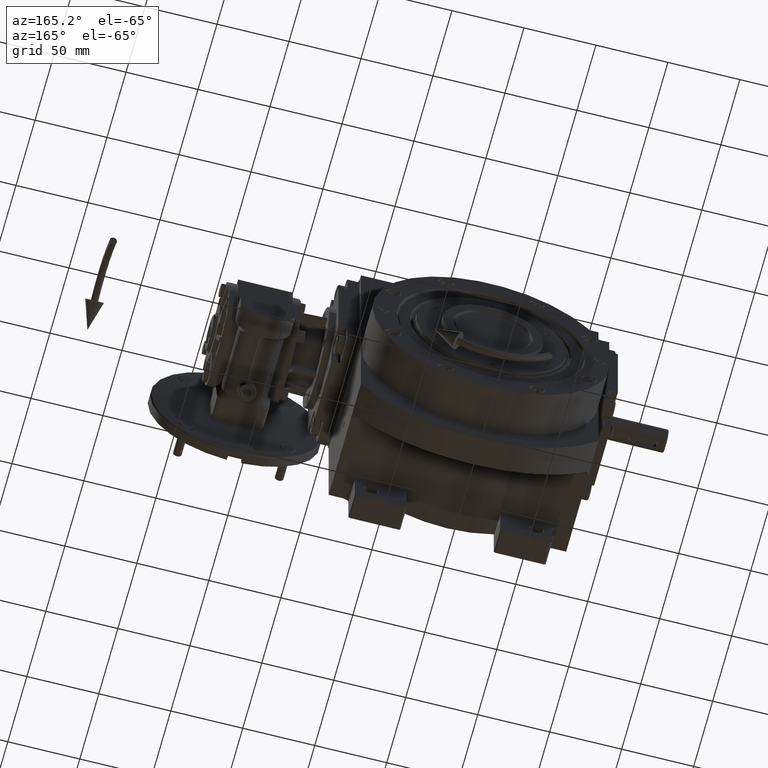
[diagram: clean part render]
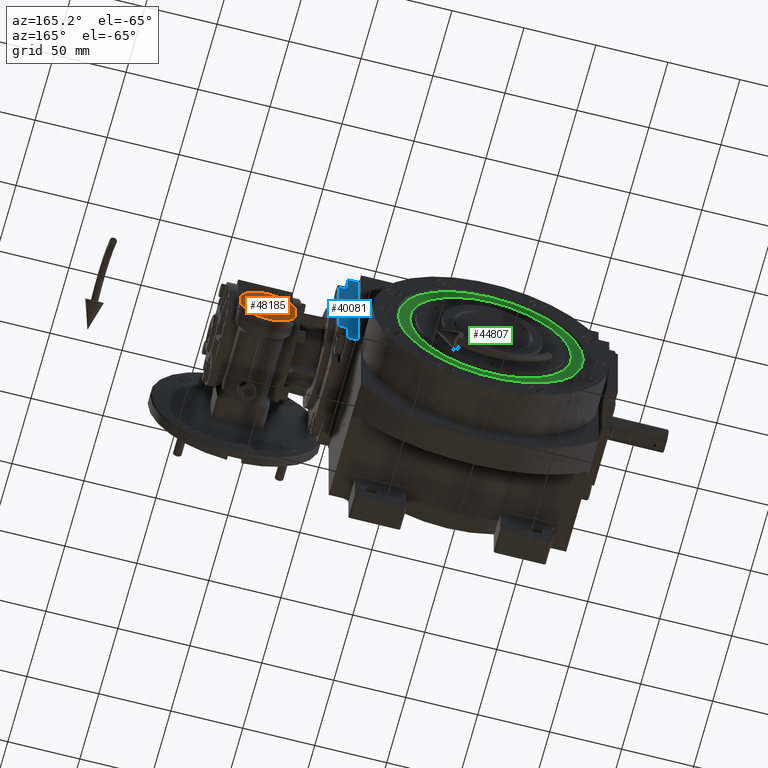
[diagram: same view with three faces highlighted in distinct colors, each labeled with its STEP entity id]
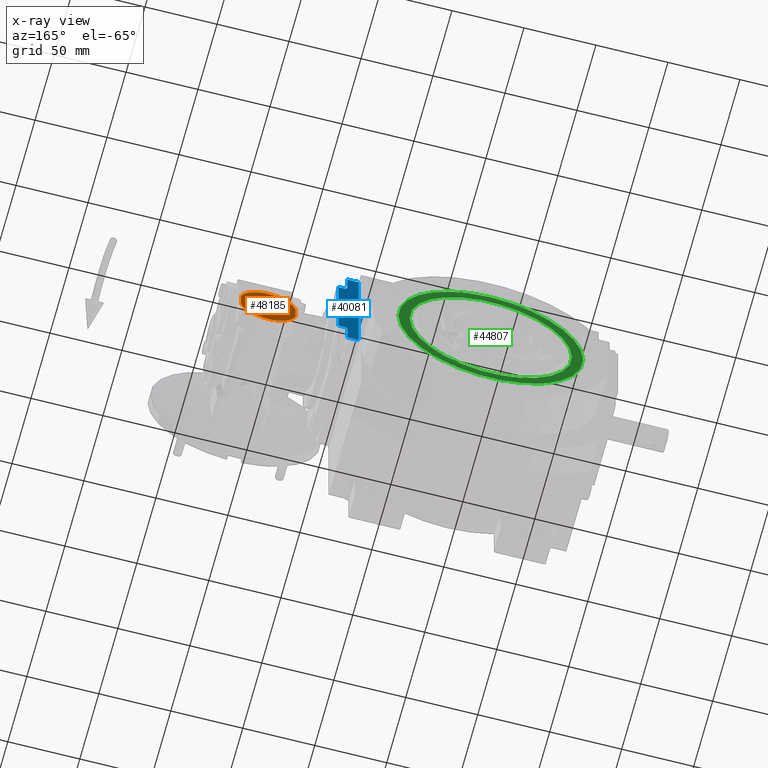
[diagram: x-ray of the same camera — body ghosted, the three highlighted faces saturated]
A machine part, auxiliary view with three faces highlighted in distinct colors.
The next image is the same camera in x-ray (body ghosted, the three faces saturated) — at least one of them is partly hidden behind the body in this view.
Their STEP definitions:

[orange] entity #48185 — the highlighted planar face has unit normal (-0, 1, 0).
#2625 = VECTOR ( 'NONE', #80742, 1000.000000000000000 ) ;
#2636 = AXIS2_PLACEMENT_3D ( 'NONE', #33237, #63866, #10971 ) ;
#3075 = PLANE ( 'NONE',  #2636 ) ;
#3303 = ORIENTED_EDGE ( 'NONE', *, *, #97345, .T. ) ;
#8624 = CARTESIAN_POINT ( 'NONE',  ( 18.99999999999998934, 34.24499799840094738, -41.00000000000000000 ) ) ;
#8653 = ORIENTED_EDGE ( 'NONE', *, *, #28893, .F. ) ;
#10971 = DIRECTION ( 'NONE',  ( -1.141460142690470232E-31, -1.000000000000000000, 1.887379141862704588E-15 ) ) ;
#11056 = CIRCLE ( 'NONE', #36356, 19.99999999999993605 ) ;
#13781 = VECTOR ( 'NONE', #28564, 1000.000000000000000 ) ;
#16617 = VERTEX_POINT ( 'NONE', #37657 ) ;
#20969 = EDGE_CURVE ( 'NONE', #29859, #86043, #40345, .T. ) ;
#25027 = VERTEX_POINT ( 'NONE', #60143 ) ;
#28564 = DIRECTION ( 'NONE',  ( 1.141460142690470451E-31, 1.000000000000000000, -1.887379141862704982E-15 ) ) ;
#28893 = EDGE_CURVE ( 'NONE', #16617, #86043, #88857, .T. ) ;
#29859 = VERTEX_POINT ( 'NONE', #60454 ) ;
#32755 = FACE_OUTER_BOUND ( 'NONE', #36085, .T. ) ;
#33237 = CARTESIAN_POINT ( 'NONE',  ( 0.000000000000000000, 28.00000000000094147, -41.00000000000023448 ) ) ;
#36085 = EDGE_LOOP ( 'NONE', ( #8653, #3303, #57301, #91456 ) ) ;
#36356 = AXIS2_PLACEMENT_3D ( 'NONE', #36648, #66800, #96947 ) ;
#36648 = CARTESIAN_POINT ( 'NONE',  ( 0.000000000000000000, 28.00000000000094147, -41.00000000000023448 ) ) ;
#37657 = CARTESIAN_POINT ( 'NONE',  ( 18.99999999999998934, 21.75500200160047370, -41.00000000000023448 ) ) ;
#38087 = DIRECTION ( 'NONE',  ( -0.9500000000000030642, 0.3122498999199105896, -6.938893903907251057E-16 ) ) ;
#39567 = CARTESIAN_POINT ( 'NONE',  ( 0.000000000000000000, 28.00000000000094147, -41.00000000000023448 ) ) ;
#40345 = CIRCLE ( 'NONE', #87680, 19.99999999999993605 ) ;
#48185 = ADVANCED_FACE ( 'NONE', ( #32755 ), #3075, .T. ) ;
#50629 = LINE ( 'NONE', #96091, #2625 ) ;
#57301 = ORIENTED_EDGE ( 'NONE', *, *, #92005, .F. ) ;
#60143 = CARTESIAN_POINT ( 'NONE',  ( -18.99999999999998934, 21.75500200160047370, -41.00000000000023448 ) ) ;
#60454 = CARTESIAN_POINT ( 'NONE',  ( -18.99999999999998934, 34.24499799840094738, -41.00000000000000000 ) ) ;
#63866 = DIRECTION ( 'NONE',  ( -4.335249955087420545E-46, -1.887379141862704588E-15, -1.000000000000000000 ) ) ;
#66800 = DIRECTION ( 'NONE',  ( -2.651382592411505179E-48, 1.887379141862762174E-15, -1.000000000000000000 ) ) ;
#80742 = DIRECTION ( 'NONE',  ( -1.141460142690470451E-31, -1.000000000000000000, 1.887379141862704982E-15 ) ) ;
#83035 = DIRECTION ( 'NONE',  ( -2.651382592411505179E-48, 1.887379141862762174E-15, -1.000000000000000000 ) ) ;
#86043 = VERTEX_POINT ( 'NONE', #8624 ) ;
#87680 = AXIS2_PLACEMENT_3D ( 'NONE', #39567, #83035, #38087 ) ;
#88857 = LINE ( 'NONE', #89350, #13781 ) ;
#89350 = CARTESIAN_POINT ( 'NONE',  ( 18.99999999999998934, 21.75500200160047370, -41.00000000000023448 ) ) ;
#91456 = ORIENTED_EDGE ( 'NONE', *, *, #20969, .T. ) ;
#92005 = EDGE_CURVE ( 'NONE', #29859, #25027, #50629, .T. ) ;
#96091 = CARTESIAN_POINT ( 'NONE',  ( -18.99999999999998934, 34.24499799840094738, -41.00000000000000000 ) ) ;
#96947 = DIRECTION ( 'NONE',  ( 0.9500000000000030642, -0.3122498999199105896, 6.938893903907251057E-16 ) ) ;
#97345 = EDGE_CURVE ( 'NONE', #16617, #25027, #11056, .T. ) ;

[blue] entity #40081 — the highlighted planar face has unit normal (-0, 1, -0).
#1320 = CARTESIAN_POINT ( 'NONE',  ( -40.50000000000023448, -7.999999999999049649, -46.00000000000046896 ) ) ;
#1484 = CARTESIAN_POINT ( 'NONE',  ( -40.49999999999929656, -7.999999999999063860, 32.49999999999953104 ) ) ;
#2941 = EDGE_CURVE ( 'NONE', #25009, #20785, #48647, .T. ) ;
#5697 = VECTOR ( 'NONE', #34312, 1000.000000000000000 ) ;
#6214 = ORIENTED_EDGE ( 'NONE', *, *, #28581, .T. ) ;
#7349 = VERTEX_POINT ( 'NONE', #13234 ) ;
#8459 = VERTEX_POINT ( 'NONE', #52136 ) ;
#8800 = CARTESIAN_POINT ( 'NONE',  ( -40.50000000000023448, 9.436895709313830594E-13, -46.00000000000046896 ) ) ;
#9150 = ORIENTED_EDGE ( 'NONE', *, *, #43979, .T. ) ;
#9613 = EDGE_CURVE ( 'NONE', #7349, #25009, #15047, .T. ) ;
#10082 = VERTEX_POINT ( 'NONE', #51546 ) ;
#11915 = LINE ( 'NONE', #86586, #76256 ) ;
#12601 = CIRCLE ( 'NONE', #89950, 2.000000000000000000 ) ;
#12655 = AXIS2_PLACEMENT_3D ( 'NONE', #13704, #96280, #13216 ) ;
#12734 = CARTESIAN_POINT ( 'NONE',  ( -40.50000000000000000, -7.999999999999049649, -32.50000000000047606 ) ) ;
#13216 = DIRECTION ( 'NONE',  ( 7.549516567451100762E-15, -1.887379141862856838E-15, 1.000000000000000000 ) ) ;
#13234 = CARTESIAN_POINT ( 'NONE',  ( -40.49999999999976552, -13.99999999999905498, -30.50000000000047251 ) ) ;
#13704 = CARTESIAN_POINT ( 'NONE',  ( -40.50000000000000000, 9.436895709313830594E-13, -49.00000000000047606 ) ) ;
#13757 = CARTESIAN_POINT ( 'NONE',  ( -40.50000000000023448, 9.436895709313830594E-13, -46.00000000000046896 ) ) ;
#14806 = LINE ( 'NONE', #1484, #84849 ) ;
#15047 = LINE ( 'NONE', #67963, #40183 ) ;
#15375 = VERTEX_POINT ( 'NONE', #58896 ) ;
#16781 = DIRECTION ( 'NONE',  ( 7.549516567451100762E-15, -1.887379141862856838E-15, 1.000000000000000000 ) ) ;
#16852 = VECTOR ( 'NONE', #79258, 1000.000000000000000 ) ;
#19374 = ORIENTED_EDGE ( 'NONE', *, *, #88940, .F. ) ;
#19500 = VERTEX_POINT ( 'NONE', #12734 ) ;
#20785 = VERTEX_POINT ( 'NONE', #95436 ) ;
#23609 = EDGE_CURVE ( 'NONE', #37465, #61033, #76517, .T. ) ;
#25009 = VERTEX_POINT ( 'NONE', #30963 ) ;
#26454 = EDGE_CURVE ( 'NONE', #20785, #8459, #70875, .T. ) ;
#28581 = EDGE_CURVE ( 'NONE', #8459, #10082, #14806, .T. ) ;
#30109 = DIRECTION ( 'NONE',  ( -6.938893903907222067E-15, 3.469446951953611033E-15, -1.000000000000000000 ) ) ;
#30369 = VECTOR ( 'NONE', #40830, 1000.000000000000000 ) ;
#30868 = ORIENTED_EDGE ( 'NONE', *, *, #35521, .T. ) ;
#30963 = CARTESIAN_POINT ( 'NONE',  ( -40.49999999999929656, -13.99999999999906919, 30.49999999999952749 ) ) ;
#34312 = DIRECTION ( 'NONE',  ( -2.076117056049039891E-14, 1.000000000000000000, -1.887379141862854471E-15 ) ) ;
#35521 = EDGE_CURVE ( 'NONE', #37465, #15375, #11915, .T. ) ;
#37060 = DIRECTION ( 'NONE',  ( 1.000000000000000000, -2.076117056049039575E-14, 7.549516567451089718E-15 ) ) ;
#37465 = VERTEX_POINT ( 'NONE', #13757 ) ;
#37640 = CARTESIAN_POINT ( 'NONE',  ( -40.50000000000000000, -9.999999999999051425, -32.50000000000047606 ) ) ;
#39410 = CARTESIAN_POINT ( 'NONE',  ( -40.49999999999929656, 4.718447854656915297E-13, 45.99999999999952394 ) ) ;
#40081 = ADVANCED_FACE ( 'NONE', ( #66135 ), #42912, .T. ) ;
#40183 = VECTOR ( 'NONE', #97629, 1000.000000000000000 ) ;
#40830 = DIRECTION ( 'NONE',  ( 7.549516567451100762E-15, -1.887379141862856838E-15, 1.000000000000000000 ) ) ;
#41134 = DIRECTION ( 'NONE',  ( 2.076117056049039891E-14, -1.000000000000000000, 1.887379141862854471E-15 ) ) ;
#42228 = CARTESIAN_POINT ( 'NONE',  ( -40.49999999999976552, -13.99999999999905498, -30.50000000000047251 ) ) ;
#42912 = PLANE ( 'NONE',  #12655 ) ;
#43979 = EDGE_CURVE ( 'NONE', #15375, #19500, #69054, .T. ) ;
#46773 = EDGE_CURVE ( 'NONE', #61033, #10082, #72359, .T. ) ;
#47848 = DIRECTION ( 'NONE',  ( 7.549516567451100762E-15, -1.887379141862856838E-15, 1.000000000000000000 ) ) ;
#48647 = LINE ( 'NONE', #87174, #16852 ) ;
#50907 = CARTESIAN_POINT ( 'NONE',  ( -40.49999999999929656, -9.999999999999065636, 32.49999999999953104 ) ) ;
#51546 = CARTESIAN_POINT ( 'NONE',  ( -40.49999999999929656, -7.999999999999063860, 45.99999999999952394 ) ) ;
#52136 = CARTESIAN_POINT ( 'NONE',  ( -40.49999999999929656, -7.999999999999063860, 32.49999999999953104 ) ) ;
#52936 = DIRECTION ( 'NONE',  ( 1.000000000000000000, -2.076117056049039575E-14, 7.549516567451089718E-15 ) ) ;
#53848 = CARTESIAN_POINT ( 'NONE',  ( -40.50000000000000000, -9.999999999999051425, -30.50000000000047251 ) ) ;
#54766 = ORIENTED_EDGE ( 'NONE', *, *, #23609, .F. ) ;
#56733 = ORIENTED_EDGE ( 'NONE', *, *, #26454, .T. ) ;
#57836 = VECTOR ( 'NONE', #47848, 1000.000000000000000 ) ;
#58896 = CARTESIAN_POINT ( 'NONE',  ( -40.50000000000023448, -7.999999999999049649, -46.00000000000046896 ) ) ;
#61033 = VERTEX_POINT ( 'NONE', #39410 ) ;
#66135 = FACE_OUTER_BOUND ( 'NONE', #76206, .T. ) ;
#67963 = CARTESIAN_POINT ( 'NONE',  ( -40.49999999999976552, -13.99999999999905498, -30.50000000000047251 ) ) ;
#69054 = LINE ( 'NONE', #1320, #30369 ) ;
#70645 = ORIENTED_EDGE ( 'NONE', *, *, #2941, .T. ) ;
#70875 = CIRCLE ( 'NONE', #97695, 2.000000000000001776 ) ;
#70894 = LINE ( 'NONE', #42228, #5697 ) ;
#71875 = DIRECTION ( 'NONE',  ( 2.076117056049039891E-14, -1.000000000000000000, 1.887379141862854471E-15 ) ) ;
#72286 = VERTEX_POINT ( 'NONE', #53848 ) ;
#72359 = LINE ( 'NONE', #94601, #89192 ) ;
#74187 = DIRECTION ( 'NONE',  ( -2.081668171172168513E-14, 1.000000000000000000, -3.469446951953614189E-15 ) ) ;
#74858 = ORIENTED_EDGE ( 'NONE', *, *, #46773, .F. ) ;
#76206 = EDGE_LOOP ( 'NONE', ( #80918, #70645, #56733, #6214, #74858, #54766, #30868, #9150, #87396, #19374 ) ) ;
#76256 = VECTOR ( 'NONE', #41134, 1000.000000000000000 ) ;
#76517 = LINE ( 'NONE', #8800, #57836 ) ;
#79258 = DIRECTION ( 'NONE',  ( -2.076117056049039891E-14, 1.000000000000000000, -1.887379141862854471E-15 ) ) ;
#80918 = ORIENTED_EDGE ( 'NONE', *, *, #9613, .T. ) ;
#84849 = VECTOR ( 'NONE', #16781, 1000.000000000000000 ) ;
#86586 = CARTESIAN_POINT ( 'NONE',  ( -40.50000000000023448, 9.436895709313830594E-13, -46.00000000000046896 ) ) ;
#87174 = CARTESIAN_POINT ( 'NONE',  ( -40.49999999999929656, -13.99999999999906919, 30.49999999999952749 ) ) ;
#87396 = ORIENTED_EDGE ( 'NONE', *, *, #97316, .T. ) ;
#88940 = EDGE_CURVE ( 'NONE', #7349, #72286, #70894, .T. ) ;
#89192 = VECTOR ( 'NONE', #71875, 1000.000000000000000 ) ;
#89950 = AXIS2_PLACEMENT_3D ( 'NONE', #37640, #52936, #74187 ) ;
#94601 = CARTESIAN_POINT ( 'NONE',  ( -40.49999999999929656, 4.718447854656915297E-13, 45.99999999999952394 ) ) ;
#95436 = CARTESIAN_POINT ( 'NONE',  ( -40.49999999999953104, -9.999999999999065636, 30.49999999999952749 ) ) ;
#96280 = DIRECTION ( 'NONE',  ( -1.000000000000000000, 2.076117056049036420E-14, 7.549516567451140206E-15 ) ) ;
#97316 = EDGE_CURVE ( 'NONE', #19500, #72286, #12601, .T. ) ;
#97629 = DIRECTION ( 'NONE',  ( 7.549516567451100762E-15, -1.887379141862856838E-15, 1.000000000000000000 ) ) ;
#97695 = AXIS2_PLACEMENT_3D ( 'NONE', #50907, #37060, #30109 ) ;

[green] entity #44807 — the highlighted planar face has unit normal (0, -1, 0).
#2048 = DIRECTION ( 'NONE',  ( 0.000000000000000000, -1.000000000000000000, 0.000000000000000000 ) ) ;
#2300 = CARTESIAN_POINT ( 'NONE',  ( 0.000000000000000000, 13.00000000000000533, 0.000000000000000000 ) ) ;
#2703 = CARTESIAN_POINT ( 'NONE',  ( 0.000000000000000000, 13.00000000000000533, 0.000000000000000000 ) ) ;
#3497 = PLANE ( 'NONE',  #58959 ) ;
#4880 = CARTESIAN_POINT ( 'NONE',  ( -2.868959371010000074E-13, 12.99999912003999647, 1.136868377215999622E-13 ) ) ;
#5343 = EDGE_CURVE ( 'NONE', #64752, #65905, #30357, .T. ) ;
#6942 = EDGE_CURVE ( 'NONE', #91108, #36999, #79237, .T. ) ;
#7196 = DIRECTION ( 'NONE',  ( 0.000000000000000000, 1.000000000000000000, 0.000000000000000000 ) ) ;
#12102 = ORIENTED_EDGE ( 'NONE', *, *, #5343, .F. ) ;
#12985 = AXIS2_PLACEMENT_3D ( 'NONE', #2703, #64466, #70915 ) ;
#14966 = CIRCLE ( 'NONE', #82856, 64.24943750451001279 ) ;
#15831 = ORIENTED_EDGE ( 'NONE', *, *, #19656, .T. ) ;
#18405 = DIRECTION ( 'NONE',  ( 0.000000000000000000, 1.000000000000000000, 0.000000000000000000 ) ) ;
#19656 = EDGE_CURVE ( 'NONE', #64752, #65905, #21140, .T. ) ;
#21140 = CIRCLE ( 'NONE', #73222, 56.28874972251000486 ) ;
#21574 = CARTESIAN_POINT ( 'NONE',  ( 56.28874972251000486, 13.00000000000000533, 0.000000000000000000 ) ) ;
#23582 = EDGE_LOOP ( 'NONE', ( #56278, #51011, #81096 ) ) ;
#28962 = CARTESIAN_POINT ( 'NONE',  ( 2.318002600039000379E-13, 12.99999912003999647, -4.618527782440990734E-14 ) ) ;
#30357 = CIRCLE ( 'NONE', #12985, 56.28874972251000486 ) ;
#33178 = CARTESIAN_POINT ( 'NONE',  ( 0.000000000000000000, 13.00000000000000533, 0.000000000000000000 ) ) ;
#33250 = CARTESIAN_POINT ( 'NONE',  ( -2.868959371010000074E-13, 12.99999912003999647, 1.136868377215999622E-13 ) ) ;
#33920 = EDGE_CURVE ( 'NONE', #36999, #91704, #63643, .T. ) ;
#35384 = EDGE_LOOP ( 'NONE', ( #12102, #15831 ) ) ;
#36409 = DIRECTION ( 'NONE',  ( -1.000000000000000000, 0.000000000000000000, 0.000000000000000000 ) ) ;
#36999 = VERTEX_POINT ( 'NONE', #61815 ) ;
#38948 = DIRECTION ( 'NONE',  ( 1.000000000000000000, 0.000000000000000000, 0.000000000000000000 ) ) ;
#40609 = FACE_BOUND ( 'NONE', #35384, .T. ) ;
#41502 = DIRECTION ( 'NONE',  ( 1.000000000000000000, 0.000000000000000000, 0.000000000000000000 ) ) ;
#44807 = ADVANCED_FACE ( 'NONE', ( #85062, #40609 ), #3497, .F. ) ;
#48440 = CARTESIAN_POINT ( 'NONE',  ( -2.870153476145001367E-13, 12.99999912003999647, -64.24943750450989910 ) ) ;
#51011 = ORIENTED_EDGE ( 'NONE', *, *, #6942, .T. ) ;
#53731 = EDGE_CURVE ( 'NONE', #91704, #91108, #14966, .T. ) ;
#56278 = ORIENTED_EDGE ( 'NONE', *, *, #53731, .T. ) ;
#58959 = AXIS2_PLACEMENT_3D ( 'NONE', #33178, #2048, #78627 ) ;
#59640 = CARTESIAN_POINT ( 'NONE',  ( 64.24943750451001279, 12.99999912003999647, -1.170072624683000209E-14 ) ) ;
#61815 = CARTESIAN_POINT ( 'NONE',  ( -64.24943750451001279, 12.99999912003999647, -1.573657873390996072E-14 ) ) ;
#63379 = DIRECTION ( 'NONE',  ( 1.000000000000000000, 0.000000000000000000, 0.000000000000000000 ) ) ;
#63643 = CIRCLE ( 'NONE', #71551, 64.24943750451001279 ) ;
#64466 = DIRECTION ( 'NONE',  ( 0.000000000000000000, 1.000000000000000000, 0.000000000000000000 ) ) ;
#64752 = VERTEX_POINT ( 'NONE', #21574 ) ;
#65198 = DIRECTION ( 'NONE',  ( 0.000000000000000000, 1.000000000000000000, 0.000000000000000000 ) ) ;
#65905 = VERTEX_POINT ( 'NONE', #95799 ) ;
#70915 = DIRECTION ( 'NONE',  ( 1.000000000000000000, 0.000000000000000000, 0.000000000000000000 ) ) ;
#71551 = AXIS2_PLACEMENT_3D ( 'NONE', #28962, #7196, #36409 ) ;
#73222 = AXIS2_PLACEMENT_3D ( 'NONE', #2300, #93235, #38948 ) ;
#78627 = DIRECTION ( 'NONE',  ( 0.000000000000000000, 0.000000000000000000, -1.000000000000000000 ) ) ;
#79237 = CIRCLE ( 'NONE', #91902, 64.24943750451001279 ) ;
#81096 = ORIENTED_EDGE ( 'NONE', *, *, #33920, .T. ) ;
#82856 = AXIS2_PLACEMENT_3D ( 'NONE', #4880, #65198, #41502 ) ;
#85062 = FACE_OUTER_BOUND ( 'NONE', #23582, .T. ) ;
#91108 = VERTEX_POINT ( 'NONE', #48440 ) ;
#91704 = VERTEX_POINT ( 'NONE', #59640 ) ;
#91902 = AXIS2_PLACEMENT_3D ( 'NONE', #33250, #18405, #63379 ) ;
#93235 = DIRECTION ( 'NONE',  ( 0.000000000000000000, -1.000000000000000000, 0.000000000000000000 ) ) ;
#95799 = CARTESIAN_POINT ( 'NONE',  ( -56.28874972251000486, 13.00000000000000533, 0.000000000000000000 ) ) ;